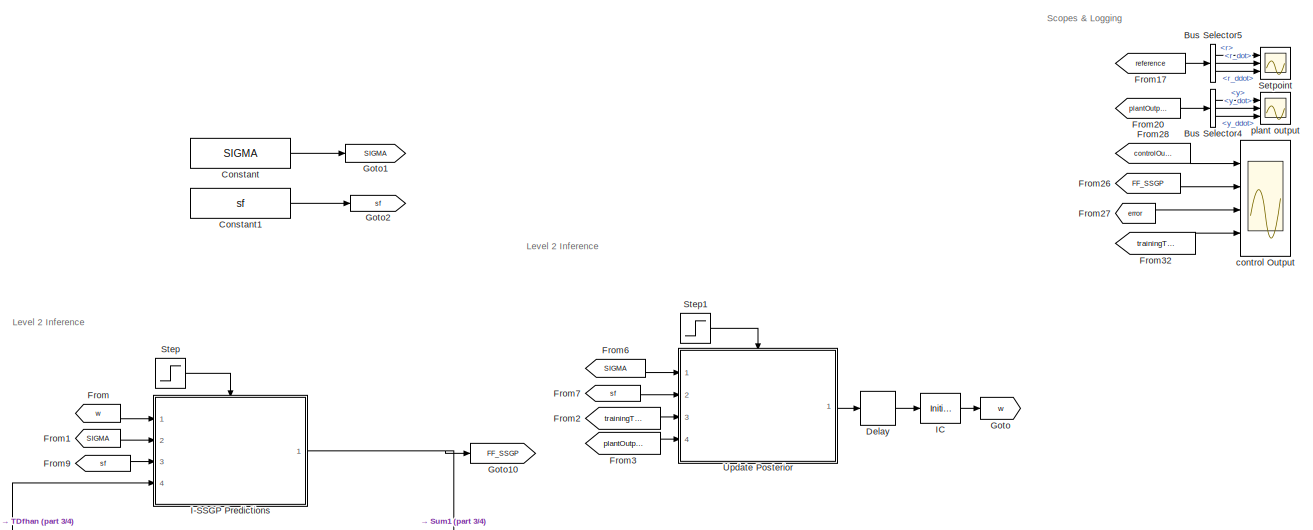
[diagram: root canvas - part 1/4, top center region]
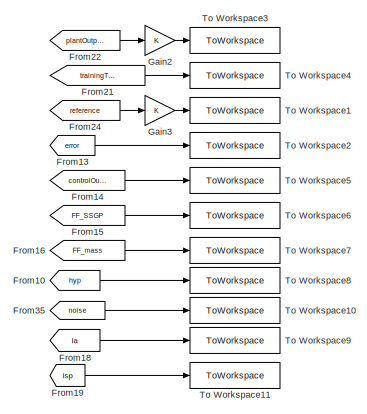
[diagram: root canvas - part 2/4, top right region]
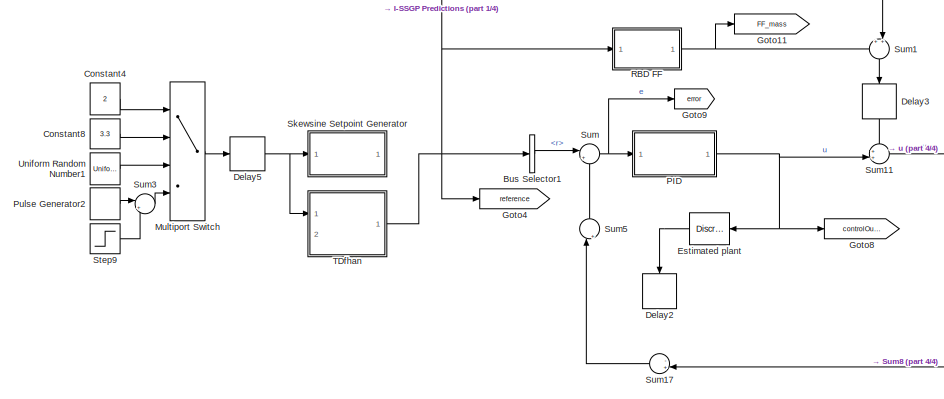
[diagram: root canvas - part 3/4, bottom left region]
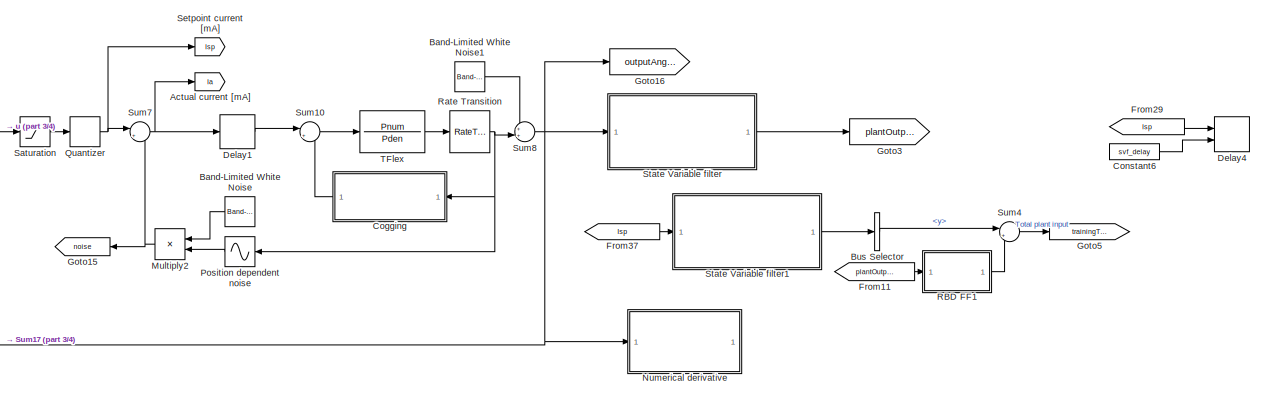
[diagram: root canvas - part 4/4, bottom right region]
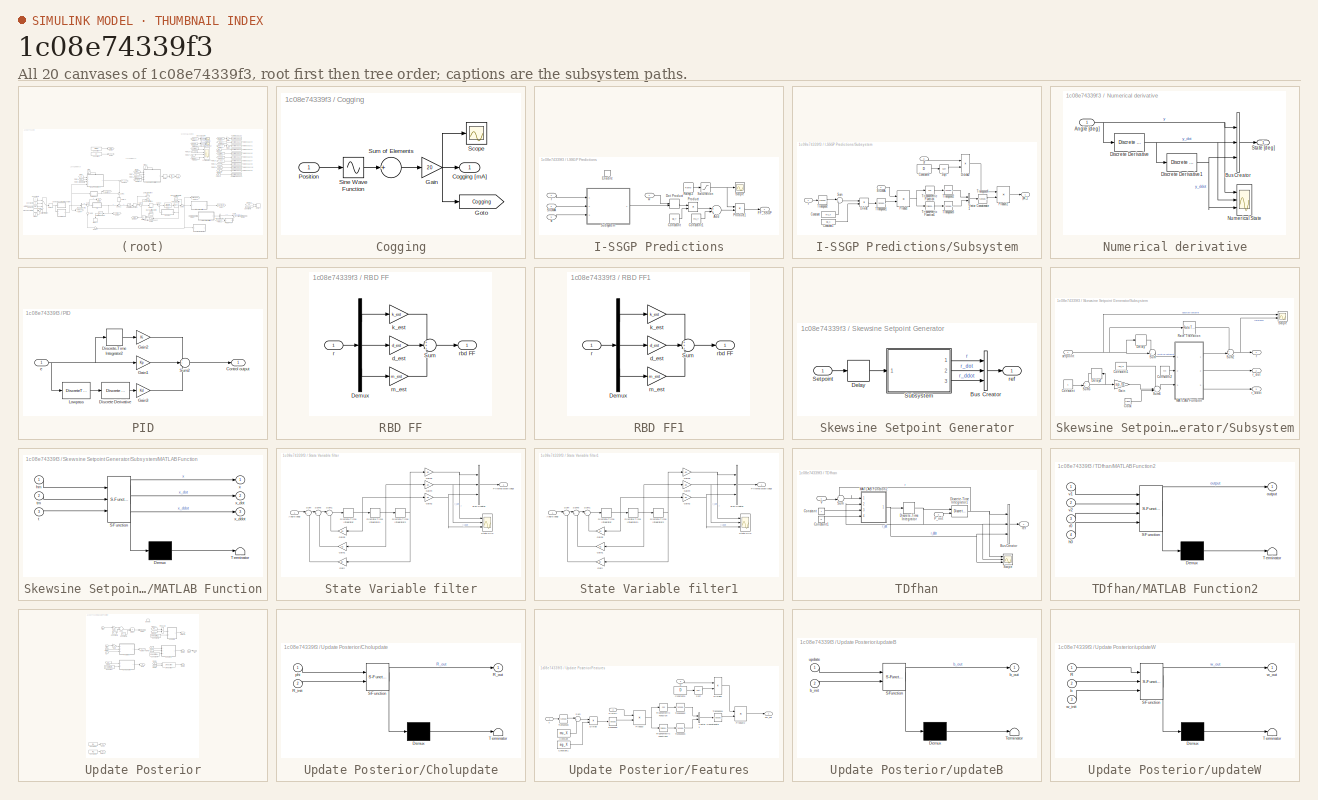
[diagram: thumbnail index - all 20 canvases of the model, root first then tree order]
MODEL slx_1c08e74339f3
KIND model
CONFIG AbsTol = auto
CONFIG EnableMultiTasking = off
CONFIG FixedStep = auto
CONFIG MaxStep = auto
CONFIG MinStep = auto
CONFIG RelTol = 1e-3
CONFIG SampleTimeConstraint = Unconstrained
CONFIG Solver = VariableStepAuto
CONFIG SolverName = VariableStepAuto
CONFIG StartTime = 0.0
CONFIG StopTime = t_end
BLOCK [Goto] Actual current [mA]
  GotoTag = Ia
BLOCK [Reference] Band-Limited White Noise  REF=simulink/Sources/Band-Limited
White Noise
  Ports = [0, 1]
  SourceBlock = simulink/Sources/Band-Limited\nWhite Noise
  SourceProductBaseCode = SL
  SourceProductName = Simulink
  SourceType = Band-Limited White Noise.
BLOCK [Reference] Band-Limited White Noise1  REF=simulink/Sources/Band-Limited
White Noise
  Ports = [0, 1]
  SourceBlock = simulink/Sources/Band-Limited\nWhite Noise
  SourceProductBaseCode = SL
  SourceProductName = Simulink
  SourceType = Band-Limited White Noise.
BLOCK [BusSelector] Bus Selector
  OutputAsBus = off
  OutputSignals = y
  Ports = [1, 1]
BLOCK [BusSelector] Bus Selector1
  OutputAsBus = off
  OutputSignals = r
  Ports = [1, 1]
BLOCK [BusSelector] Bus Selector4
  OutputAsBus = off
  OutputSignals = y,y_dot,y_ddot
  Ports = [1, 3]
BLOCK [BusSelector] Bus Selector5
  OutputAsBus = off
  OutputSignals = r,r_dot,r_ddot
  Ports = [1, 3]
BLOCK [SubSystem] Cogging
  Ports = [1, 1]
  RequestExecContextInheritance = off
BLOCK [Outport] Cogging/Cogging [mA]
  IconDisplay = Port number
BLOCK [Gain] Cogging/Gain
  Gain = 20
  OutDataTypeStr = Inherit: Inherit via internal rule
  ParamDataTypeStr = Inherit: Inherit via internal rule
  SaturateOnIntegerOverflow = off
BLOCK [Goto] Cogging/Goto
  GotoTag = Cogging
BLOCK [Inport] Cogging/Position
  IconDisplay = Port number
BLOCK [Scope] Cogging/Scope
  Floating = off
  NumInputPorts = 1
  Ports = [1]
  ScopeSpecificationString = Simulink.scopes.TimeScopeBlockCfg('CurrentConfiguration', extmgr.ConfigurationSet(extmgr.Configuration('Core','General UI',true),extmgr.Configuration('Core','Source UI',true),extmgr.Configuration('Sources','WiredSimulink',true,'DataLoggingVariableName','ScopeData2'),extmgr.Configuration('Visuals','Time Domain',true,'SerializedDisplays',{struct('MinYLimReal','-28.50673','MaxYLimReal','28.50713','YL...<+1388ch>
BLOCK [Sin] Cogging/Sine Wave Function
  Amplitude = ampCogging'
  Frequency = 2*pi./freqCogging'
  Phase = phaseCogging'*2*pi
  Ports = [1, 1]
  SampleTime = 0
  TimeSource = Use external signal
BLOCK [Sum] Cogging/Sum of Elements
  InputSameDT = off
  Inputs = +
  OutDataTypeStr = Inherit: Inherit via internal rule
  Ports = [1, 1]
  SaturateOnIntegerOverflow = off
BLOCK [Constant] Constant
  Value = SIGMA
BLOCK [Constant] Constant1
  Value = sf
BLOCK [Constant] Constant4
  SampleTime = sp_ts
  Value = 2
BLOCK [Constant] Constant6
  SampleTime = ts
  Value = svf_delay
BLOCK [Constant] Constant8
  SampleTime = sp_ts
  Value = 3.3
BLOCK [Delay] Delay
  DelayLength = 1
  InitialCondition = 0
  InputPortMap = u0
  Ports = [1, 1]
BLOCK [Delay] Delay1
  Commented = through
  DelayLength = 3
  InitialCondition = 0
  InputPortMap = u0
  Ports = [1, 1]
BLOCK [Delay] Delay2
  DelayLength = 3
  InitialCondition = 0
  InputPortMap = u0
  Ports = [1, 1]
BLOCK [Delay] Delay3
  Commented = through
  DelayLength = 3
  InitialCondition = 0
  InputPortMap = u0
  Ports = [1, 1]
BLOCK [Delay] Delay4
  DelayLength = 3
  DelayLengthSource = Input port
  InitialCondition = 0
  InputPortMap = u0,p1
  Ports = [2, 1]
BLOCK [Delay] Delay5
  Commented = through
  DelayLength = sp_ts
  InputPortMap = u0
  Ports = [1, 1]
  SampleTime = sp_ts
BLOCK [DiscreteTransferFcn] Estimated plant
  Denominator = P_estden
  InputPortMap = u0
  Numerator = P_estnum
  Ports = [1, 1]
  SampleTime = ts
BLOCK [From] From
  GotoTag = w
BLOCK [From] From1
  GotoTag = SIGMA
BLOCK [From] From10
  GotoTag = hyp
BLOCK [From] From11
  GotoTag = plantOutput
BLOCK [From] From13
  GotoTag = error
BLOCK [From] From14
  GotoTag = controlOutput
BLOCK [From] From15
  GotoTag = FF_SSGP
BLOCK [From] From16
  GotoTag = FF_mass
BLOCK [From] From17
  GotoTag = reference
BLOCK [From] From18
  GotoTag = Ia
BLOCK [From] From19
  GotoTag = Isp
BLOCK [From] From2
  GotoTag = trainingTarget
BLOCK [From] From20
  GotoTag = plantOutput
BLOCK [From] From21
  GotoTag = trainingTarget
BLOCK [From] From22
  GotoTag = plantOutput
BLOCK [From] From24
  GotoTag = reference
BLOCK [From] From26
  GotoTag = FF_SSGP
BLOCK [From] From27
  GotoTag = error
BLOCK [From] From28
  GotoTag = controlOutput
BLOCK [From] From29
  GotoTag = Isp
BLOCK [From] From3
  GotoTag = plantOutput
BLOCK [From] From32
  GotoTag = trainingTarget
BLOCK [From] From35
  GotoTag = noise
BLOCK [From] From37
  GotoTag = Isp
BLOCK [From] From6
  GotoTag = SIGMA
BLOCK [From] From7
  GotoTag = sf
BLOCK [From] From9
  GotoTag = sf
BLOCK [Gain] Gain2
  OutDataTypeStr = Inherit: Inherit via internal rule
  ParamDataTypeStr = Inherit: Inherit via internal rule
  SaturateOnIntegerOverflow = off
BLOCK [Gain] Gain3
  OutDataTypeStr = Inherit: Inherit via internal rule
  ParamDataTypeStr = Inherit: Inherit via internal rule
  SaturateOnIntegerOverflow = off
BLOCK [Goto] Goto
  GotoTag = w
BLOCK [Goto] Goto1
  GotoTag = SIGMA
BLOCK [Goto] Goto10
  GotoTag = FF_SSGP
BLOCK [Goto] Goto11
  GotoTag = FF_mass
BLOCK [Goto] Goto15
  GotoTag = noise
BLOCK [Goto] Goto16
  GotoTag = outputAngle
BLOCK [Goto] Goto2
  GotoTag = sf
BLOCK [Goto] Goto3
  GotoTag = plantOutput
BLOCK [Goto] Goto4
  GotoTag = reference
BLOCK [Goto] Goto5
  GotoTag = trainingTarget
BLOCK [Goto] Goto8
  GotoTag = controlOutput
BLOCK [Goto] Goto9
  GotoTag = error
BLOCK [SubSystem] I-SSGP Predictions
  Ports = [4, 1, 1]
  RequestExecContextInheritance = off
BLOCK [Sum] I-SSGP Predictions/Add
  InputSameDT = off
  OutDataTypeStr = Inherit: Inherit via internal rule
  Ports = [2, 1]
  SaturateOnIntegerOverflow = off
BLOCK [Constant] I-SSGP Predictions/Constant
  SampleTime = ts
  Value = sig_Y
  VectorParams1D = off
BLOCK [Constant] I-SSGP Predictions/Constant1
  SampleTime = ts
  Value = mu_Y
  VectorParams1D = off
BLOCK [DotProduct] I-SSGP Predictions/Dot Product
  InputSameDT = off
  OutDataTypeStr = Inherit: Inherit via internal rule
BLOCK [EnablePort] I-SSGP Predictions/Enable
  Ports = []
BLOCK [Outport] I-SSGP Predictions/FF_SSGP
  IconDisplay = Port number
  SampleTime = ts
BLOCK [Product] I-SSGP Predictions/Product
  InputSameDT = off
  OutDataTypeStr = Inherit: Inherit via internal rule
  Ports = [2, 1]
  RndMeth = Floor
  SaturateOnIntegerOverflow = off
BLOCK [Product] I-SSGP Predictions/Product1
  InputSameDT = off
  OutDataTypeStr = Inherit: Inherit via internal rule
  Ports = [2, 1]
  RndMeth = Floor
  SaturateOnIntegerOverflow = off
BLOCK [Reference] I-SSGP Predictions/Ramp2  REF=simulink/Sources/Ramp
  Ports = [0, 1]
  SourceBlock = simulink/Sources/Ramp
  SourceProductBaseCode = SL
  SourceProductName = Simulink
  SourceType = Ramp
BLOCK [Inport] I-SSGP Predictions/SIGMA
  IconDisplay = Port number
  Port = 2
BLOCK [Saturate] I-SSGP Predictions/Saturation
  InputPortMap = u0
  LowerLimit = 0
  Ports = [1, 1]
  UpperLimit = 1
BLOCK [Scope] I-SSGP Predictions/Scope
  Floating = off
  NumInputPorts = 1
  Ports = [1]
  ScopeSpecificationString = Simulink.scopes.TimeScopeBlockCfg('CurrentConfiguration', extmgr.ConfigurationSet(extmgr.Configuration('Core','General UI',true),extmgr.Configuration('Core','Source UI',true),extmgr.Configuration('Sources','WiredSimulink',true,'DataLoggingVariableName','ScopeData2'),extmgr.Configuration('Visuals','Time Domain',true,'SerializedDisplays',{struct('MinYLimReal','-0.125','MaxYLimReal','1.125','YLabelRe...<+1433ch>
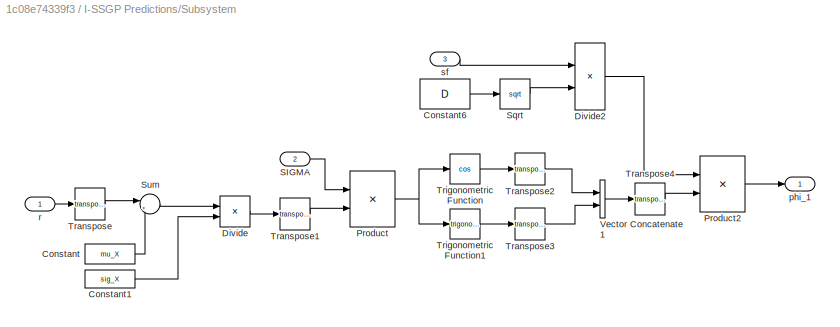
BLOCK [SubSystem] I-SSGP Predictions/Subsystem
  Ports = [3, 1]
  RequestExecContextInheritance = off
BLOCK [Constant] I-SSGP Predictions/Subsystem/Constant
  SampleTime = -1
  Value = mu_X
  VectorParams1D = off
BLOCK [Constant] I-SSGP Predictions/Subsystem/Constant1
  SampleTime = -1
  Value = sig_X
  VectorParams1D = off
BLOCK [Constant] I-SSGP Predictions/Subsystem/Constant6
  SampleTime = -1
  Value = D
BLOCK [Product] I-SSGP Predictions/Subsystem/Divide
  InputSameDT = off
  Inputs = */
  OutDataTypeStr = Inherit: Inherit via internal rule
  Ports = [2, 1]
  RndMeth = Floor
  SaturateOnIntegerOverflow = off
BLOCK [Product] I-SSGP Predictions/Subsystem/Divide2
  InputSameDT = off
  Inputs = */
  OutDataTypeStr = Inherit: Inherit via internal rule
  Ports = [2, 1]
  RndMeth = Floor
  SaturateOnIntegerOverflow = off
BLOCK [Product] I-SSGP Predictions/Subsystem/Product
  InputSameDT = off
  Multiplication = Matrix(*)
  OutDataTypeStr = Inherit: Inherit via internal rule
  Ports = [2, 1]
  RndMeth = Floor
  SaturateOnIntegerOverflow = off
BLOCK [Product] I-SSGP Predictions/Subsystem/Product2
  InputSameDT = off
  OutDataTypeStr = Inherit: Inherit via internal rule
  Ports = [2, 1]
  RndMeth = Floor
  SaturateOnIntegerOverflow = off
BLOCK [Inport] I-SSGP Predictions/Subsystem/SIGMA
  IconDisplay = Port number
  Port = 2
BLOCK [Sqrt] I-SSGP Predictions/Subsystem/Sqrt
BLOCK [Sum] I-SSGP Predictions/Subsystem/Sum
  IconShape = round
  InputSameDT = off
  Inputs = |+-
  OutDataTypeStr = Inherit: Inherit via internal rule
  Ports = [2, 1]
  SaturateOnIntegerOverflow = off
BLOCK [Math] I-SSGP Predictions/Subsystem/Transpose
  Operator = transpose
  Ports = [1, 1]
BLOCK [Math] I-SSGP Predictions/Subsystem/Transpose1
  Operator = transpose
  Ports = [1, 1]
BLOCK [Math] I-SSGP Predictions/Subsystem/Transpose2
  Operator = transpose
  Ports = [1, 1]
BLOCK [Math] I-SSGP Predictions/Subsystem/Transpose3
  Operator = transpose
  Ports = [1, 1]
BLOCK [Math] I-SSGP Predictions/Subsystem/Transpose4
  Operator = transpose
  Ports = [1, 1]
BLOCK [Trigonometry] I-SSGP Predictions/Subsystem/Trigonometric Function
  Operator = cos
  Ports = [1, 1]
BLOCK [Trigonometry] I-SSGP Predictions/Subsystem/Trigonometric Function1
  Ports = [1, 1]
BLOCK [Concatenate] I-SSGP Predictions/Subsystem/Vector Concatenate1
  Ports = [2, 1]
BLOCK [Outport] I-SSGP Predictions/Subsystem/phi_1
  IconDisplay = Port number
BLOCK [Inport] I-SSGP Predictions/Subsystem/r
  IconDisplay = Port number
BLOCK [Inport] I-SSGP Predictions/Subsystem/sf
  IconDisplay = Port number
  Port = 3
BLOCK [Inport] I-SSGP Predictions/r
  IconDisplay = Port number
  Port = 4
BLOCK [Inport] I-SSGP Predictions/sf
  IconDisplay = Port number
  Port = 3
BLOCK [Inport] I-SSGP Predictions/w
  IconDisplay = Port number
BLOCK [InitialCondition] IC
  Value = ones(2*D,1)*0.001
BLOCK [Product] Multiply2
  InputSameDT = off
  OutDataTypeStr = Inherit: Inherit via internal rule
  Ports = [2, 1]
  RndMeth = Floor
  SaturateOnIntegerOverflow = off
BLOCK [MultiPortSwitch] Multiport Switch
  InputSameDT = off
  Ports = [4, 1]
  SaturateOnIntegerOverflow = off
BLOCK [SubSystem] Numerical derivative
  Ports = [1, 1]
  RequestExecContextInheritance = off
BLOCK [Inport] Numerical derivative/Angle [deg]
  IconDisplay = Port number
BLOCK [BusCreator] Numerical derivative/Bus Creator
  DisplayOption = bar
  InheritFromInputs = on
  Inputs = 3
  Ports = [3, 1]
BLOCK [Reference] Numerical derivative/Discrete Derivative  REF=simulink/Discrete/Discrete Derivative
  Ports = [1, 1]
  SourceBlock = simulink/Discrete/Discrete Derivative
  SourceProductBaseCode = SL
  SourceProductName = Simulink
  SourceType = Discrete Derivative
BLOCK [Reference] Numerical derivative/Discrete Derivative1  REF=simulink/Discrete/Discrete Derivative
  Ports = [1, 1]
  SourceBlock = simulink/Discrete/Discrete Derivative
  SourceProductBaseCode = SL
  SourceProductName = Simulink
  SourceType = Discrete Derivative
BLOCK [Scope] Numerical derivative/Numerical State
  Floating = off
  NumInputPorts = 3
  Ports = [3]
  ScopeSpecificationString = Simulink.scopes.TimeScopeBlockCfg('CurrentConfiguration', extmgr.ConfigurationSet(extmgr.Configuration('Core','General UI',true),extmgr.Configuration('Core','Source UI',true),extmgr.Configuration('Sources','WiredSimulink',true,'DataLoggingVariableName','ScopeData2','DataLoggingSaveFormat','StructureWithTime'),extmgr.Configuration('Visuals','Time Domain',true,'SerializedDisplays',{struct('MinYLimRe...<+2770ch>
BLOCK [Outport] Numerical derivative/State [deg]
  IconDisplay = Port number
BLOCK [SubSystem] PID
  Ports = [1, 1]
  RequestExecContextInheritance = off
BLOCK [Outport] PID/Control output
  IconDisplay = Port number
BLOCK [Reference] PID/Discrete Derivative  REF=simulink/Discrete/Discrete Derivative
  Ports = [1, 1]
  SourceBlock = simulink/Discrete/Discrete Derivative
  SourceProductBaseCode = SL
  SourceProductName = Simulink
  SourceType = Discrete Derivative
BLOCK [DiscreteIntegrator] PID/Discrete-Time Integrator2
  ICPrevOutput = DiscIntNeverNeededParam
  ICPrevScaledInput = DiscIntNeverNeededParam
  InitialConditionSetting = Auto
  Ports = [1, 1]
  SampleTime = -1
BLOCK [Gain] PID/Gain1
  Gain = Kp
  OutDataTypeStr = Inherit: Inherit via internal rule
  ParamDataTypeStr = Inherit: Inherit via internal rule
  SaturateOnIntegerOverflow = off
BLOCK [Gain] PID/Gain2
  Gain = Ki
  OutDataTypeStr = Inherit: Inherit via internal rule
  ParamDataTypeStr = Inherit: Inherit via internal rule
  SaturateOnIntegerOverflow = off
BLOCK [Gain] PID/Gain3
  Gain = Kd
  OutDataTypeStr = Inherit: Inherit via internal rule
  ParamDataTypeStr = Inherit: Inherit via internal rule
  SaturateOnIntegerOverflow = off
BLOCK [DiscreteTransferFcn] PID/Lowpass
  Denominator = LPden
  InputPortMap = u0
  Numerator = LPnum
  Ports = [1, 1]
  SampleTime = ts
BLOCK [Sum] PID/Sum2
  IconShape = round
  InputSameDT = off
  Inputs = 3
  OutDataTypeStr = Inherit: Inherit via internal rule
  Ports = [3, 1]
  SaturateOnIntegerOverflow = off
BLOCK [Inport] PID/e
  IconDisplay = Port number
BLOCK [Sin] Position dependent noise
  Amplitude = 2.5
  Bias = 7.4979
  Frequency = 2*pi/13
  Ports = [1, 1]
  SampleTime = 0
  TimeSource = Use external signal
BLOCK [DiscretePulseGenerator] Pulse Generator2
  Amplitude = 2*24
  Ports = [0, 1]
  SampleTime = sp_ts
BLOCK [Quantizer] Quantizer
  QuantizationInterval = 1
BLOCK [SubSystem] RBD FF
  Ports = [1, 1]
  RequestExecContextInheritance = off
BLOCK [Demux] RBD FF/Demux
  DisplayOption = bar
  Outputs = 3
  Ports = [1, 3]
BLOCK [Sum] RBD FF/Sum
  IconShape = round
  InputSameDT = off
  Inputs = +++
  OutDataTypeStr = Inherit: Inherit via internal rule
  Ports = [3, 1]
  SaturateOnIntegerOverflow = off
BLOCK [Gain] RBD FF/d_est
  Gain = d_est
  OutDataTypeStr = Inherit: Inherit via internal rule
  ParamDataTypeStr = Inherit: Inherit via internal rule
  SaturateOnIntegerOverflow = off
BLOCK [Gain] RBD FF/k_est
  Gain = k_est
  OutDataTypeStr = Inherit: Inherit via internal rule
  ParamDataTypeStr = Inherit: Inherit via internal rule
  SaturateOnIntegerOverflow = off
BLOCK [Gain] RBD FF/m_est
  Gain = m_est
  OutDataTypeStr = Inherit: Inherit via internal rule
  ParamDataTypeStr = Inherit: Inherit via internal rule
  SaturateOnIntegerOverflow = off
BLOCK [Inport] RBD FF/r
  IconDisplay = Port number
BLOCK [Outport] RBD FF/rbd FF
  IconDisplay = Port number
BLOCK [SubSystem] RBD FF1
  Ports = [1, 1]
  RequestExecContextInheritance = off
BLOCK [Demux] RBD FF1/Demux
  DisplayOption = bar
  Outputs = 3
  Ports = [1, 3]
BLOCK [Sum] RBD FF1/Sum
  IconShape = round
  InputSameDT = off
  Inputs = +++
  OutDataTypeStr = Inherit: Inherit via internal rule
  Ports = [3, 1]
  SaturateOnIntegerOverflow = off
BLOCK [Gain] RBD FF1/d_est
  Gain = d_est
  OutDataTypeStr = Inherit: Inherit via internal rule
  ParamDataTypeStr = Inherit: Inherit via internal rule
  SaturateOnIntegerOverflow = off
BLOCK [Gain] RBD FF1/k_est
  Gain = k_est
  OutDataTypeStr = Inherit: Inherit via internal rule
  ParamDataTypeStr = Inherit: Inherit via internal rule
  SaturateOnIntegerOverflow = off
BLOCK [Gain] RBD FF1/m_est
  Gain = m_est
  OutDataTypeStr = Inherit: Inherit via internal rule
  ParamDataTypeStr = Inherit: Inherit via internal rule
  SaturateOnIntegerOverflow = off
BLOCK [Inport] RBD FF1/r
  IconDisplay = Port number
BLOCK [Outport] RBD FF1/rbd FF
  IconDisplay = Port number
BLOCK [RateTransition] Rate Transition
  OutPortSampleTime = ts
BLOCK [Saturate] Saturation
  InputPortMap = u0
  LowerLimit = -I_limit
  Ports = [1, 1]
  UpperLimit = I_limit
BLOCK [Scope] Setpoint
  Floating = off
  NumInputPorts = 3
  Ports = [3]
  ScopeSpecificationString = Simulink.scopes.TimeScopeBlockCfg('CurrentConfiguration', extmgr.ConfigurationSet(extmgr.Configuration('Core','General UI',true),extmgr.Configuration('Core','Source UI',true),extmgr.Configuration('Sources','WiredSimulink',true,'DataLoggingVariableName','ScopeData3','DataLoggingSaveFormat','StructureWithTime'),extmgr.Configuration('Visuals','Time Domain',true,'SerializedDisplays',{struct('MinYLimRe...<+2775ch>
BLOCK [Goto] Setpoint current [mA]
  GotoTag = Isp
BLOCK [SubSystem] Skewsine Setpoint Generator
  Ports = [1, 1]
  RequestExecContextInheritance = off
BLOCK [BusCreator] Skewsine Setpoint Generator/Bus Creator
  DisplayOption = bar
  InheritFromInputs = on
  Inputs = 3
  Ports = [3, 1]
BLOCK [Delay] Skewsine Setpoint Generator/Delay
  Commented = through
  DelayLength = 1
  InitialCondition = 0
  InputPortMap = u0
  Ports = [1, 1]
BLOCK [Inport] Skewsine Setpoint Generator/Setpoint
  IconDisplay = Port number
BLOCK [SubSystem] Skewsine Setpoint Generator/Subsystem
  Ports = [1, 3]
  RequestExecContextInheritance = off
BLOCK [Clock] Skewsine Setpoint Generator/Subsystem/Clock
  Decimation = 100
BLOCK [Constant] Skewsine Setpoint Generator/Subsystem/Constant
  SampleTime = sp_ts
BLOCK [Constant] Skewsine Setpoint Generator/Subsystem/Constant1
  SampleTime = sp_ts
  Value = -sp_ts
BLOCK [Constant] Skewsine Setpoint Generator/Subsystem/Constant2
  SampleTime = sp_ts
  Value = tm
BLOCK [Delay] Skewsine Setpoint Generator/Subsystem/Delay
  DelayLength = 1
  InitialCondition = 0
  InputPortMap = u0
  Ports = [1, 1]
  SampleTime = sp_ts
BLOCK [Delay] Skewsine Setpoint Generator/Subsystem/Delay4
  DelayLength = 1
  InitialCondition = 0
  InputPortMap = u0
  Ports = [1, 1]
  SampleTime = sp_ts
BLOCK [Gain] Skewsine Setpoint Generator/Subsystem/Gain
  Gain = sp_ts
  OutDataTypeStr = Inherit: Inherit via internal rule
  ParamDataTypeStr = Inherit: Inherit via internal rule
  SaturateOnIntegerOverflow = off
BLOCK [SubSystem] Skewsine Setpoint Generator/Subsystem/MATLAB Function
  ErrorFcn = Stateflow.Translate.translate
  PermitHierarchicalResolution = ExplicitOnly
  Ports = [3, 3]
  RequestExecContextInheritance = off
  SFBlockType = MATLAB Function
  TreatAsAtomicUnit = on
BLOCK [Demux] Skewsine Setpoint Generator/Subsystem/MATLAB Function/ Demux 
  Outputs = 1
  Ports = [1, 1]
BLOCK [S-Function] Skewsine Setpoint Generator/Subsystem/MATLAB Function/ SFunction 
  EnableBusSupport = on
  FunctionName = sf_sfun
  PortCounts = [3 4]
  Ports = [3, 4]
  SFcnIsStateOwnerBlock = off
  SFunctionDeploymentMode = off
  Tag = Stateflow S-Function TFlex_ISSGP_noHyp 2
BLOCK [Terminator] Skewsine Setpoint Generator/Subsystem/MATLAB Function/ Terminator 
BLOCK [Inport] Skewsine Setpoint Generator/Subsystem/MATLAB Function/hm
  IconDisplay = Port number
BLOCK [Inport] Skewsine Setpoint Generator/Subsystem/MATLAB Function/t
  IconDisplay = Port number
  Port = 3
BLOCK [Inport] Skewsine Setpoint Generator/Subsystem/MATLAB Function/tm
  IconDisplay = Port number
  Port = 2
BLOCK [Outport] Skewsine Setpoint Generator/Subsystem/MATLAB Function/x
  IconDisplay = Port number
BLOCK [Outport] Skewsine Setpoint Generator/Subsystem/MATLAB Function/x_ddot
  IconDisplay = Port number
  Port = 3
BLOCK [Outport] Skewsine Setpoint Generator/Subsystem/MATLAB Function/x_dot
  IconDisplay = Port number
  Port = 2
BLOCK [RateTransition] Skewsine Setpoint Generator/Subsystem/Rate Transition
  OutPortSampleTime = ts
BLOCK [Scope] Skewsine Setpoint Generator/Subsystem/Scope
  Floating = off
  NumInputPorts = 2
  Ports = [2]
  ScopeSpecificationString = Simulink.scopes.TimeScopeBlockCfg('CurrentConfiguration', extmgr.ConfigurationSet(extmgr.Configuration('Core','General UI',true),extmgr.Configuration('Core','Source UI',true),extmgr.Configuration('Sources','WiredSimulink',true,'DataLoggingVariableName','ScopeData2'),extmgr.Configuration('Visuals','Time Domain',true,'SerializedDisplays',{struct('MinYLimReal','-26.98733','MaxYLimReal','28.29894','YL...<+1450ch>
BLOCK [Sum] Skewsine Setpoint Generator/Subsystem/Sum
  IconShape = round
  InputSameDT = off
  Inputs = -+|
  OutDataTypeStr = Inherit: Inherit via internal rule
  Ports = [2, 1]
  SaturateOnIntegerOverflow = off
BLOCK [Sum] Skewsine Setpoint Generator/Subsystem/Sum2
  IconShape = round
  InputSameDT = off
  Inputs = ++|
  OutDataTypeStr = Inherit: Inherit via internal rule
  Ports = [2, 1]
  SaturateOnIntegerOverflow = off
BLOCK [Sum] Skewsine Setpoint Generator/Subsystem/Sum5
  IconShape = round
  InputSameDT = off
  Inputs = ++|
  OutDataTypeStr = Inherit: Inherit via internal rule
  Ports = [2, 1]
  SaturateOnIntegerOverflow = off
BLOCK [Sum] Skewsine Setpoint Generator/Subsystem/Sum6
  IconShape = round
  InputSameDT = off
  Inputs = --+|
  OutDataTypeStr = Inherit: Inherit via internal rule
  Ports = [3, 1]
  SaturateOnIntegerOverflow = off
BLOCK [Outport] Skewsine Setpoint Generator/Subsystem/r
  IconDisplay = Port number
BLOCK [Outport] Skewsine Setpoint Generator/Subsystem/r_ddot
  IconDisplay = Port number
  Port = 3
BLOCK [Outport] Skewsine Setpoint Generator/Subsystem/r_dot
  IconDisplay = Port number
  Port = 2
BLOCK [Inport] Skewsine Setpoint Generator/Subsystem/setpoint
  IconDisplay = Port number
BLOCK [Outport] Skewsine Setpoint Generator/ref
  IconDisplay = Port number
BLOCK [SubSystem] State Variable filter
  Ports = [1, 1]
  RequestExecContextInheritance = off
BLOCK [Inport] State Variable filter/Angle [deg]
  IconDisplay = Port number
BLOCK [BusCreator] State Variable filter/Bus Creator
  DisplayOption = bar
  InheritFromInputs = on
  Inputs = 3
  Ports = [3, 1]
BLOCK [DiscreteIntegrator] State Variable filter/Discrete-Time Integrator
  ICPrevOutput = DiscIntNeverNeededParam
  ICPrevScaledInput = DiscIntNeverNeededParam
  InitialConditionSetting = Auto
  Ports = [1, 1]
  SampleTime = -1
BLOCK [DiscreteIntegrator] State Variable filter/Discrete-Time Integrator1
  ICPrevOutput = DiscIntNeverNeededParam
  ICPrevScaledInput = DiscIntNeverNeededParam
  InitialConditionSetting = Auto
  Ports = [1, 1]
  SampleTime = -1
BLOCK [DiscreteIntegrator] State Variable filter/Discrete-Time Integrator2
  ICPrevOutput = DiscIntNeverNeededParam
  ICPrevScaledInput = DiscIntNeverNeededParam
  InitialConditionSetting = Auto
  Ports = [1, 1]
  SampleTime = -1
BLOCK [Outport] State Variable filter/Filtered state [deg]
  IconDisplay = Port number
  SampleTime = ts
BLOCK [Gain] State Variable filter/Gain
  Gain = a0
  OutDataTypeStr = Inherit: Inherit via internal rule
  ParamDataTypeStr = Inherit: Inherit via internal rule
  SaturateOnIntegerOverflow = off
BLOCK [Gain] State Variable filter/Gain1
  Gain = a1
  OutDataTypeStr = Inherit: Inherit via internal rule
  ParamDataTypeStr = Inherit: Inherit via internal rule
  SaturateOnIntegerOverflow = off
BLOCK [Gain] State Variable filter/Gain2
  Gain = a0
  OutDataTypeStr = Inherit: Inherit via internal rule
  ParamDataTypeStr = Inherit: Inherit via internal rule
  SaturateOnIntegerOverflow = off
BLOCK [Gain] State Variable filter/Gain3
  Gain = a0
  OutDataTypeStr = Inherit: Inherit via internal rule
  ParamDataTypeStr = Inherit: Inherit via internal rule
  SaturateOnIntegerOverflow = off
BLOCK [Gain] State Variable filter/Gain4
  Gain = a0
  OutDataTypeStr = Inherit: Inherit via internal rule
  ParamDataTypeStr = Inherit: Inherit via internal rule
  SaturateOnIntegerOverflow = off
BLOCK [Gain] State Variable filter/Gain5
  Gain = a2
  OutDataTypeStr = Inherit: Inherit via internal rule
  ParamDataTypeStr = Inherit: Inherit via internal rule
  SaturateOnIntegerOverflow = off
BLOCK [Scope] State Variable filter/State SVF
  Floating = off
  NumInputPorts = 3
  Ports = [3]
  ScopeSpecificationString = Simulink.scopes.TimeScopeBlockCfg('CurrentConfiguration', extmgr.ConfigurationSet(extmgr.Configuration('Core','General UI',true),extmgr.Configuration('Core','Source UI',true),extmgr.Configuration('Sources','WiredSimulink',true,'DataLoggingVariableName','ScopeData2','DataLoggingSaveFormat','StructureWithTime'),extmgr.Configuration('Visuals','Time Domain',true,'SerializedDisplays',{struct('MinYLimRe...<+2766ch>
BLOCK [Sum] State Variable filter/Sum
  IconShape = round
  InputSameDT = off
  Inputs = |+-
  OutDataTypeStr = Inherit: Inherit via internal rule
  Ports = [2, 1]
  SaturateOnIntegerOverflow = off
BLOCK [Sum] State Variable filter/Sum1
  IconShape = round
  InputSameDT = off
  Inputs = |+-
  OutDataTypeStr = Inherit: Inherit via internal rule
  Ports = [2, 1]
  SaturateOnIntegerOverflow = off
BLOCK [Sum] State Variable filter/Sum5
  IconShape = round
  InputSameDT = off
  Inputs = |+-
  OutDataTypeStr = Inherit: Inherit via internal rule
  Ports = [2, 1]
  SaturateOnIntegerOverflow = off
BLOCK [SubSystem] State Variable filter1
  Ports = [1, 1]
  RequestExecContextInheritance = off
BLOCK [Inport] State Variable filter1/Angle [deg]
  IconDisplay = Port number
BLOCK [BusCreator] State Variable filter1/Bus Creator
  DisplayOption = bar
  InheritFromInputs = on
  Inputs = 3
  Ports = [3, 1]
BLOCK [DiscreteIntegrator] State Variable filter1/Discrete-Time Integrator
  ICPrevOutput = DiscIntNeverNeededParam
  ICPrevScaledInput = DiscIntNeverNeededParam
  InitialConditionSetting = Auto
  Ports = [1, 1]
  SampleTime = -1
BLOCK [DiscreteIntegrator] State Variable filter1/Discrete-Time Integrator1
  ICPrevOutput = DiscIntNeverNeededParam
  ICPrevScaledInput = DiscIntNeverNeededParam
  InitialConditionSetting = Auto
  Ports = [1, 1]
  SampleTime = -1
BLOCK [DiscreteIntegrator] State Variable filter1/Discrete-Time Integrator2
  ICPrevOutput = DiscIntNeverNeededParam
  ICPrevScaledInput = DiscIntNeverNeededParam
  InitialConditionSetting = Auto
  Ports = [1, 1]
  SampleTime = -1
BLOCK [Outport] State Variable filter1/Filtered state [deg]
  IconDisplay = Port number
  SampleTime = ts
BLOCK [Gain] State Variable filter1/Gain
  Gain = a0
  OutDataTypeStr = Inherit: Inherit via internal rule
  ParamDataTypeStr = Inherit: Inherit via internal rule
  SaturateOnIntegerOverflow = off
BLOCK [Gain] State Variable filter1/Gain1
  Gain = a1
  OutDataTypeStr = Inherit: Inherit via internal rule
  ParamDataTypeStr = Inherit: Inherit via internal rule
  SaturateOnIntegerOverflow = off
BLOCK [Gain] State Variable filter1/Gain2
  Gain = a0
  OutDataTypeStr = Inherit: Inherit via internal rule
  ParamDataTypeStr = Inherit: Inherit via internal rule
  SaturateOnIntegerOverflow = off
BLOCK [Gain] State Variable filter1/Gain3
  Gain = a0
  OutDataTypeStr = Inherit: Inherit via internal rule
  ParamDataTypeStr = Inherit: Inherit via internal rule
  SaturateOnIntegerOverflow = off
BLOCK [Gain] State Variable filter1/Gain4
  Gain = a0
  OutDataTypeStr = Inherit: Inherit via internal rule
  ParamDataTypeStr = Inherit: Inherit via internal rule
  SaturateOnIntegerOverflow = off
BLOCK [Gain] State Variable filter1/Gain5
  Gain = a2
  OutDataTypeStr = Inherit: Inherit via internal rule
  ParamDataTypeStr = Inherit: Inherit via internal rule
  SaturateOnIntegerOverflow = off
BLOCK [Scope] State Variable filter1/State SVF
  Floating = off
  NumInputPorts = 3
  Ports = [3]
  ScopeSpecificationString = Simulink.scopes.TimeScopeBlockCfg('CurrentConfiguration', extmgr.ConfigurationSet(extmgr.Configuration('Core','General UI',true),extmgr.Configuration('Core','Source UI',true),extmgr.Configuration('Sources','WiredSimulink',true,'DataLoggingVariableName','ScopeData2','DataLoggingSaveFormat','StructureWithTime'),extmgr.Configuration('Visuals','Time Domain',true,'SerializedDisplays',{struct('MinYLimRe...<+2766ch>
BLOCK [Sum] State Variable filter1/Sum
  IconShape = round
  InputSameDT = off
  Inputs = |+-
  OutDataTypeStr = Inherit: Inherit via internal rule
  Ports = [2, 1]
  SaturateOnIntegerOverflow = off
BLOCK [Sum] State Variable filter1/Sum1
  IconShape = round
  InputSameDT = off
  Inputs = |+-
  OutDataTypeStr = Inherit: Inherit via internal rule
  Ports = [2, 1]
  SaturateOnIntegerOverflow = off
BLOCK [Sum] State Variable filter1/Sum5
  IconShape = round
  InputSameDT = off
  Inputs = |+-
  OutDataTypeStr = Inherit: Inherit via internal rule
  Ports = [2, 1]
  SaturateOnIntegerOverflow = off
BLOCK [Step] Step
  SampleTime = ts
  Time = t_predict
BLOCK [Step] Step1
  SampleTime = ts
  Time = 0.01
BLOCK [Step] Step9
  After = -24
  SampleTime = sp_ts
  Time = 0
BLOCK [Sum] Sum
  IconShape = round
  InputSameDT = off
  Inputs = |+-
  OutDataTypeStr = Inherit: Inherit via internal rule
  Ports = [2, 1]
  SaturateOnIntegerOverflow = off
BLOCK [Sum] Sum1
  IconShape = round
  InputSameDT = off
  Inputs = ++|
  OutDataTypeStr = Inherit: Inherit via internal rule
  Ports = [2, 1]
  SaturateOnIntegerOverflow = off
BLOCK [Sum] Sum10
  IconShape = round
  InputSameDT = off
  Inputs = |+-
  OutDataTypeStr = Inherit: Inherit via internal rule
  Ports = [2, 1]
  SaturateOnIntegerOverflow = off
BLOCK [Sum] Sum11
  IconShape = round
  InputSameDT = off
  Inputs = ++|
  OutDataTypeStr = Inherit: Inherit via internal rule
  Ports = [2, 1]
  SaturateOnIntegerOverflow = off
BLOCK [Sum] Sum17
  IconShape = round
  InputSameDT = off
  Inputs = -+|
  OutDataTypeStr = Inherit: Inherit via internal rule
  Ports = [2, 1]
  SaturateOnIntegerOverflow = off
BLOCK [Sum] Sum3
  IconShape = round
  InputSameDT = off
  Inputs = |++
  OutDataTypeStr = Inherit: Inherit via internal rule
  Ports = [2, 1]
  SaturateOnIntegerOverflow = off
BLOCK [Sum] Sum4
  IconShape = round
  InputSameDT = off
  Inputs = |+-
  OutDataTypeStr = Inherit: Inherit via internal rule
  Ports = [2, 1]
  SaturateOnIntegerOverflow = off
BLOCK [Sum] Sum5
  IconShape = round
  InputSameDT = off
  Inputs = |++
  OutDataTypeStr = Inherit: Inherit via internal rule
  Ports = [2, 1]
  SaturateOnIntegerOverflow = off
BLOCK [Sum] Sum7
  IconShape = round
  InputSameDT = off
  Inputs = |+-
  OutDataTypeStr = Inherit: Inherit via internal rule
  Ports = [2, 1]
  SaturateOnIntegerOverflow = off
BLOCK [Sum] Sum8
  IconShape = round
  InputSameDT = off
  Inputs = ++|
  OutDataTypeStr = Inherit: Inherit via internal rule
  Ports = [2, 1]
  SaturateOnIntegerOverflow = off
BLOCK [SubSystem] TDfhan
  Ports = [2, 1]
  RequestExecContextInheritance = off
BLOCK [BusCreator] TDfhan/Bus Creator
  DisplayOption = bar
  InheritFromInputs = on
  Inputs = 3
  Ports = [3, 1]
BLOCK [Constant] TDfhan/Constant
  SampleTime = ts
  Value = r
BLOCK [Constant] TDfhan/Constant1
  SampleTime = ts
  Value = h
BLOCK [DiscreteIntegrator] TDfhan/Discrete-Time Integrator
  ICPrevOutput = DiscIntNeverNeededParam
  ICPrevScaledInput = DiscIntNeverNeededParam
  InitialConditionSetting = Auto
  Ports = [1, 1]
  SampleTime = ts
  gainval = 1
BLOCK [DiscreteIntegrator] TDfhan/Discrete-Time Integrator1
  ICPrevOutput = DiscIntNeverNeededParam
  ICPrevScaledInput = DiscIntNeverNeededParam
  InitialCondition = -24
  InitialConditionSetting = Auto
  InitialConditionSource = external
  Ports = [2, 1]
  SampleTime = ts
  gainval = 1
BLOCK [SubSystem] TDfhan/MATLAB Function2
  ErrorFcn = Stateflow.Translate.translate
  PermitHierarchicalResolution = ExplicitOnly
  Ports = [4, 1]
  RequestExecContextInheritance = off
  SFBlockType = MATLAB Function
  TreatAsAtomicUnit = on
BLOCK [Demux] TDfhan/MATLAB Function2/ Demux 
  Outputs = 1
  Ports = [1, 1]
BLOCK [S-Function] TDfhan/MATLAB Function2/ SFunction 
  EnableBusSupport = on
  FunctionName = sf_sfun
  PortCounts = [4 2]
  Ports = [4, 2]
  SFcnIsStateOwnerBlock = off
  SFunctionDeploymentMode = off
  Tag = Stateflow S-Function TFlex_ISSGP_noHyp 7
BLOCK [Terminator] TDfhan/MATLAB Function2/ Terminator 
BLOCK [Inport] TDfhan/MATLAB Function2/h0
  IconDisplay = Port number
  Port = 4
BLOCK [Outport] TDfhan/MATLAB Function2/output
  IconDisplay = Port number
BLOCK [Inport] TDfhan/MATLAB Function2/r0
  IconDisplay = Port number
  Port = 3
BLOCK [Inport] TDfhan/MATLAB Function2/v1
  IconDisplay = Port number
BLOCK [Inport] TDfhan/MATLAB Function2/v2
  IconDisplay = Port number
  Port = 2
BLOCK [Inport] TDfhan/P_init
  IconDisplay = Port number
  Port = 2
BLOCK [Scope] TDfhan/Scope
  Floating = off
  NumInputPorts = 3
  Ports = [3]
  ScopeSpecificationString = Simulink.scopes.TimeScopeBlockCfg('CurrentConfiguration', extmgr.ConfigurationSet(extmgr.Configuration('Core','General UI',true),extmgr.Configuration('Core','Source UI',true),extmgr.Configuration('Sources','WiredSimulink',true,'DataLoggingVariableName','ScopeData1'),extmgr.Configuration('Visuals','Time Domain',true,'SerializedDisplays',{struct('MinYLimReal','-0.22989','MaxYLimReal','0.25408','YLab...<+2795ch>
BLOCK [Sum] TDfhan/Sum
  IconShape = round
  InputSameDT = off
  Inputs = +-|
  OutDataTypeStr = Inherit: Inherit via internal rule
  Ports = [2, 1]
  SaturateOnIntegerOverflow = off
BLOCK [Inport] TDfhan/V
  IconDisplay = Port number
BLOCK [Outport] TDfhan/ref
  IconDisplay = Port number
BLOCK [TransferFcn] TFlex
  ContinuousStateAttributes = 'angle'
  Denominator = Pden
  Numerator = Pnum
BLOCK [ToWorkspace] To Workspace1
  FixptAsFi = on
  MaxDataPoints = inf
  Ports = [1]
  SampleTime = -1
  Save2DSignal = 3-D array (concatenate along third dimension)
  VariableName = reference
BLOCK [ToWorkspace] To Workspace10
  FixptAsFi = on
  MaxDataPoints = inf
  Ports = [1]
  SampleTime = -1
  Save2DSignal = 3-D array (concatenate along third dimension)
  VariableName = noise
BLOCK [ToWorkspace] To Workspace11
  FixptAsFi = on
  MaxDataPoints = inf
  Ports = [1]
  SampleTime = -1
  Save2DSignal = 3-D array (concatenate along third dimension)
  VariableName = setpointCurrent
BLOCK [ToWorkspace] To Workspace2
  FixptAsFi = on
  MaxDataPoints = inf
  Ports = [1]
  SampleTime = -1
  Save2DSignal = 3-D array (concatenate along third dimension)
  VariableName = error
BLOCK [ToWorkspace] To Workspace3
  FixptAsFi = on
  MaxDataPoints = inf
  Ports = [1]
  SampleTime = -1
  Save2DSignal = 3-D array (concatenate along third dimension)
  VariableName = trainingInput
BLOCK [ToWorkspace] To Workspace4
  FixptAsFi = on
  MaxDataPoints = inf
  Ports = [1]
  SampleTime = -1
  Save2DSignal = 3-D array (concatenate along third dimension)
  VariableName = trainingTarget
BLOCK [ToWorkspace] To Workspace5
  FixptAsFi = on
  MaxDataPoints = inf
  Ports = [1]
  SampleTime = -1
  Save2DSignal = 3-D array (concatenate along third dimension)
  VariableName = controlOutput
BLOCK [ToWorkspace] To Workspace6
  FixptAsFi = on
  MaxDataPoints = inf
  Ports = [1]
  SampleTime = -1
  Save2DSignal = 3-D array (concatenate along third dimension)
  VariableName = FF_SSGP
BLOCK [ToWorkspace] To Workspace7
  FixptAsFi = on
  MaxDataPoints = inf
  Ports = [1]
  SampleTime = -1
  Save2DSignal = 3-D array (concatenate along third dimension)
  VariableName = FF_RBD
BLOCK [ToWorkspace] To Workspace8
  FixptAsFi = on
  MaxDataPoints = inf
  Ports = [1]
  SampleTime = -1
  Save2DSignal = 3-D array (concatenate along third dimension)
  VariableName = hyperParam
BLOCK [ToWorkspace] To Workspace9
  FixptAsFi = on
  MaxDataPoints = inf
  Ports = [1]
  SampleTime = -1
  Save2DSignal = 3-D array (concatenate along third dimension)
  VariableName = actualCurrent
BLOCK [UniformRandomNumber] Uniform Random Number1
  Maximum = 23
  Minimum = -23
  SampleTime = sp_ts
  Seed = seed
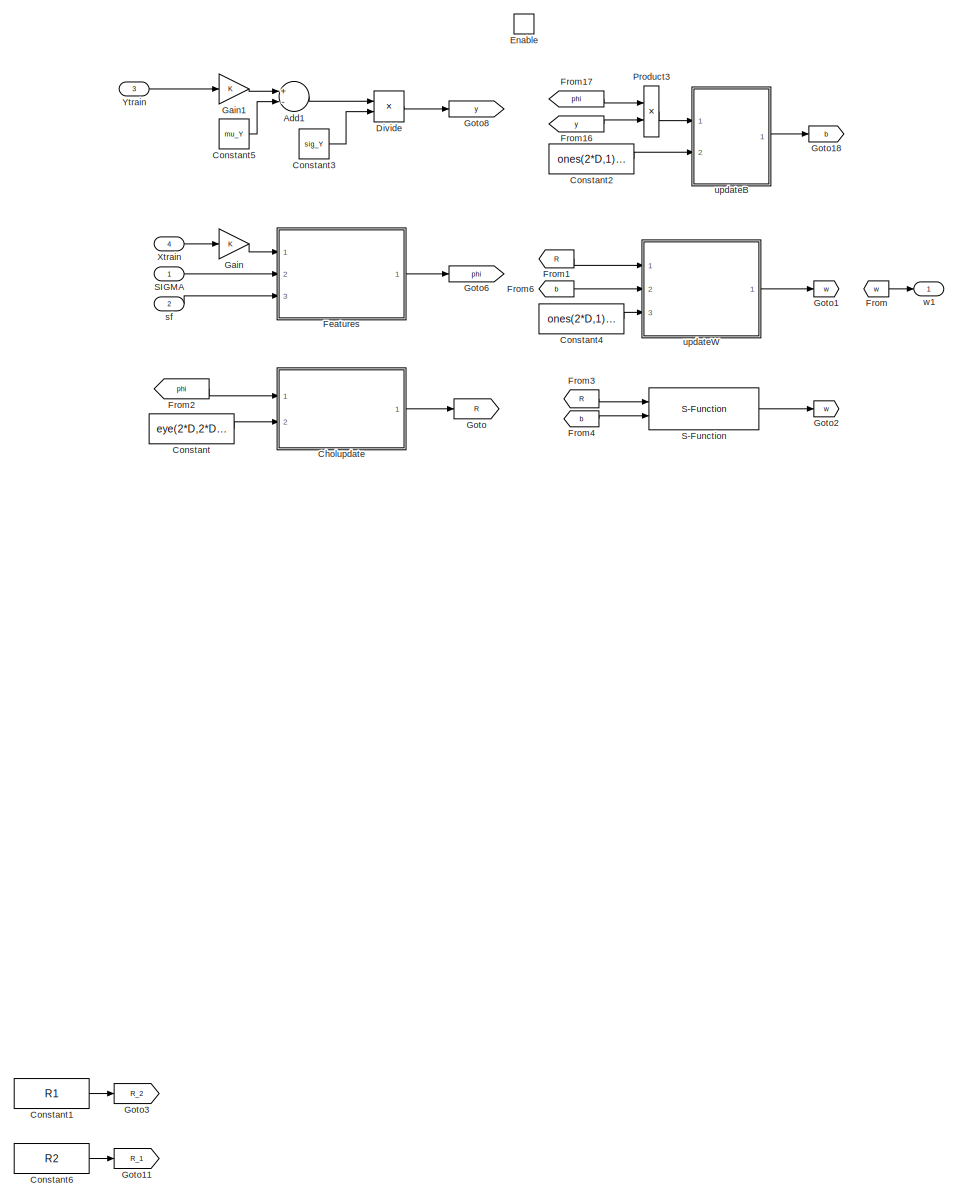
[diagram: Update Posterior - part 1/1, most of the canvas]
BLOCK [SubSystem] Update Posterior
  Ports = [4, 1, 1]
  RequestExecContextInheritance = off
BLOCK [Sum] Update Posterior/Add1
  InputSameDT = off
  Inputs = +-
  OutDataTypeStr = Inherit: Inherit via internal rule
  Ports = [2, 1]
  SaturateOnIntegerOverflow = off
BLOCK [SubSystem] Update Posterior/Cholupdate
  ErrorFcn = Stateflow.Translate.translate
  PermitHierarchicalResolution = ExplicitOnly
  Ports = [2, 1]
  RequestExecContextInheritance = off
  SFBlockType = MATLAB Function
  TreatAsAtomicUnit = on
BLOCK [Demux] Update Posterior/Cholupdate/ Demux 
  Outputs = 1
  Ports = [1, 1]
BLOCK [S-Function] Update Posterior/Cholupdate/ SFunction 
  EnableBusSupport = on
  FunctionName = sf_sfun
  Parameters = D,sn
  PortCounts = [2 2]
  Ports = [2, 2]
  SFcnIsStateOwnerBlock = off
  SFunctionDeploymentMode = off
  Tag = Stateflow S-Function TFlex_ISSGP_noHyp 6
BLOCK [Terminator] Update Posterior/Cholupdate/ Terminator 
BLOCK [Inport] Update Posterior/Cholupdate/R_init
  IconDisplay = Port number
  Port = 2
BLOCK [Outport] Update Posterior/Cholupdate/R_out
  IconDisplay = Port number
BLOCK [Inport] Update Posterior/Cholupdate/phi
  IconDisplay = Port number
BLOCK [Constant] Update Posterior/Constant
  SampleTime = ts
  Value = eye(2*D,2*D).*sn
BLOCK [Constant] Update Posterior/Constant1
  Commented = on
  SampleTime = -1
  Value = R1
  VectorParams1D = off
BLOCK [Constant] Update Posterior/Constant2
  SampleTime = ts
  Value = ones(2*D,1).*0.01
BLOCK [Constant] Update Posterior/Constant3
  SampleTime = ts
  Value = sig_Y
  VectorParams1D = off
BLOCK [Constant] Update Posterior/Constant4
  Commented = on
  SampleTime = ts
  Value = ones(2*D,1).*0.01
BLOCK [Constant] Update Posterior/Constant5
  SampleTime = ts
  Value = mu_Y
  VectorParams1D = off
BLOCK [Constant] Update Posterior/Constant6
  Commented = on
  SampleTime = -1
  Value = R2
  VectorParams1D = off
BLOCK [Product] Update Posterior/Divide
  InputSameDT = off
  Inputs = */
  OutDataTypeStr = Inherit: Inherit via internal rule
  Ports = [2, 1]
  RndMeth = Floor
  SaturateOnIntegerOverflow = off
BLOCK [EnablePort] Update Posterior/Enable
  Ports = []
BLOCK [SubSystem] Update Posterior/Features
  Ports = [3, 1]
  RequestExecContextInheritance = off
BLOCK [Constant] Update Posterior/Features/Constant
  SampleTime = ts
  Value = mu_X
  VectorParams1D = off
BLOCK [Constant] Update Posterior/Features/Constant1
  SampleTime = ts
  Value = sig_X
  VectorParams1D = off
BLOCK [Constant] Update Posterior/Features/Constant6
  SampleTime = -1
  Value = D
BLOCK [Product] Update Posterior/Features/Divide
  InputSameDT = off
  Inputs = */
  OutDataTypeStr = Inherit: Inherit via internal rule
  Ports = [2, 1]
  RndMeth = Floor
  SaturateOnIntegerOverflow = off
BLOCK [Product] Update Posterior/Features/Divide2
  InputSameDT = off
  Inputs = */
  OutDataTypeStr = Inherit: Inherit via internal rule
  Ports = [2, 1]
  RndMeth = Floor
  SaturateOnIntegerOverflow = off
BLOCK [Product] Update Posterior/Features/Product
  InputSameDT = off
  Multiplication = Matrix(*)
  OutDataTypeStr = Inherit: Inherit via internal rule
  Ports = [2, 1]
  RndMeth = Floor
  SaturateOnIntegerOverflow = off
BLOCK [Product] Update Posterior/Features/Product2
  InputSameDT = off
  OutDataTypeStr = Inherit: Inherit via internal rule
  Ports = [2, 1]
  RndMeth = Floor
  SaturateOnIntegerOverflow = off
BLOCK [Inport] Update Posterior/Features/SIGMA
  IconDisplay = Port number
  Port = 2
BLOCK [Sqrt] Update Posterior/Features/Sqrt
BLOCK [Sum] Update Posterior/Features/Sum
  IconShape = round
  InputSameDT = off
  Inputs = |+-
  OutDataTypeStr = Inherit: Inherit via internal rule
  Ports = [2, 1]
  SaturateOnIntegerOverflow = off
BLOCK [Math] Update Posterior/Features/Transpose
  Operator = transpose
  Ports = [1, 1]
BLOCK [Math] Update Posterior/Features/Transpose2
  Operator = transpose
  Ports = [1, 1]
BLOCK [Math] Update Posterior/Features/Transpose3
  Operator = transpose
  Ports = [1, 1]
BLOCK [Math] Update Posterior/Features/Transpose4
  Operator = transpose
  Ports = [1, 1]
BLOCK [Math] Update Posterior/Features/Transpose8
  Operator = transpose
  Ports = [1, 1]
BLOCK [Trigonometry] Update Posterior/Features/Trigonometric Function
  Operator = cos
  Ports = [1, 1]
BLOCK [Trigonometry] Update Posterior/Features/Trigonometric Function1
  Ports = [1, 1]
BLOCK [Concatenate] Update Posterior/Features/Vector Concatenate1
  Ports = [2, 1]
BLOCK [Outport] Update Posterior/Features/phi_out
  IconDisplay = Port number
BLOCK [Inport] Update Posterior/Features/sf
  IconDisplay = Port number
  Port = 3
BLOCK [Inport] Update Posterior/Features/x
  IconDisplay = Port number
BLOCK [From] Update Posterior/From
  GotoTag = w
BLOCK [From] Update Posterior/From1
  Commented = on
  GotoTag = R
BLOCK [From] Update Posterior/From16
  GotoTag = y
BLOCK [From] Update Posterior/From17
  GotoTag = phi
BLOCK [From] Update Posterior/From2
  GotoTag = phi
BLOCK [From] Update Posterior/From3
  GotoTag = R
BLOCK [From] Update Posterior/From4
  GotoTag = b
BLOCK [From] Update Posterior/From6
  Commented = on
  GotoTag = b
BLOCK [Gain] Update Posterior/Gain
  OutDataTypeStr = Inherit: Inherit via internal rule
  ParamDataTypeStr = Inherit: Inherit via internal rule
  SaturateOnIntegerOverflow = off
BLOCK [Gain] Update Posterior/Gain1
  OutDataTypeStr = Inherit: Inherit via internal rule
  ParamDataTypeStr = Inherit: Inherit via internal rule
  SaturateOnIntegerOverflow = off
BLOCK [Goto] Update Posterior/Goto
  GotoTag = R
BLOCK [Goto] Update Posterior/Goto1
  Commented = on
  GotoTag = w
BLOCK [Goto] Update Posterior/Goto11
  Commented = on
  GotoTag = R_1
BLOCK [Goto] Update Posterior/Goto18
  GotoTag = b
BLOCK [Goto] Update Posterior/Goto2
  GotoTag = w
BLOCK [Goto] Update Posterior/Goto3
  Commented = on
  GotoTag = R_2
BLOCK [Goto] Update Posterior/Goto6
  GotoTag = phi
BLOCK [Goto] Update Posterior/Goto8
  GotoTag = y
BLOCK [Product] Update Posterior/Product3
  InputSameDT = off
  OutDataTypeStr = Inherit: Inherit via internal rule
  Ports = [2, 1]
  RndMeth = Floor
  SaturateOnIntegerOverflow = off
BLOCK [S-Function] Update Posterior/S-Function
  EnableBusSupport = off
  FunctionName = solve_chol_sfun
  Parameters = 2*D
  Ports = [2, 1]
  SFcnIsStateOwnerBlock = off
  SFunctionDeploymentMode = off
BLOCK [Inport] Update Posterior/SIGMA
  IconDisplay = Port number
  SampleTime = ts
BLOCK [Inport] Update Posterior/Xtrain
  IconDisplay = Port number
  Port = 4
  PortDimensions = [n,1]
  SampleTime = ts
BLOCK [Inport] Update Posterior/Ytrain
  IconDisplay = Port number
  Port = 3
  PortDimensions = [1,1]
  SampleTime = ts
BLOCK [Inport] Update Posterior/sf
  IconDisplay = Port number
  Port = 2
  SampleTime = ts
BLOCK [SubSystem] Update Posterior/updateB
  ErrorFcn = Stateflow.Translate.translate
  PermitHierarchicalResolution = ExplicitOnly
  Ports = [2, 1]
  RequestExecContextInheritance = off
  SFBlockType = MATLAB Function
  TreatAsAtomicUnit = on
BLOCK [Demux] Update Posterior/updateB/ Demux 
  Outputs = 1
  Ports = [1, 1]
BLOCK [S-Function] Update Posterior/updateB/ SFunction 
  EnableBusSupport = on
  FunctionName = sf_sfun
  Parameters = D
  PortCounts = [2 2]
  Ports = [2, 2]
  SFcnIsStateOwnerBlock = off
  SFunctionDeploymentMode = off
  Tag = Stateflow S-Function TFlex_ISSGP_noHyp 8
BLOCK [Terminator] Update Posterior/updateB/ Terminator 
BLOCK [Inport] Update Posterior/updateB/b_init
  IconDisplay = Port number
  Port = 2
BLOCK [Outport] Update Posterior/updateB/b_out
  IconDisplay = Port number
BLOCK [Inport] Update Posterior/updateB/update
  IconDisplay = Port number
BLOCK [SubSystem] Update Posterior/updateW
  Commented = on
  ErrorFcn = Stateflow.Translate.translate
  PermitHierarchicalResolution = ExplicitOnly
  Ports = [3, 1]
  RequestExecContextInheritance = off
  SFBlockType = MATLAB Function
  TreatAsAtomicUnit = on
BLOCK [Demux] Update Posterior/updateW/ Demux 
  Outputs = 1
  Ports = [1, 1]
BLOCK [S-Function] Update Posterior/updateW/ SFunction 
  EnableBusSupport = on
  FunctionName = sf_sfun
  Parameters = D
  PortCounts = [3 2]
  Ports = [3, 2]
  SFcnIsStateOwnerBlock = off
  SFunctionDeploymentMode = off
  Tag = Stateflow S-Function TFlex_ISSGP_noHyp 4
BLOCK [Terminator] Update Posterior/updateW/ Terminator 
BLOCK [Inport] Update Posterior/updateW/R
  IconDisplay = Port number
BLOCK [Inport] Update Posterior/updateW/b
  IconDisplay = Port number
  Port = 2
BLOCK [Inport] Update Posterior/updateW/w_init
  IconDisplay = Port number
  Port = 3
BLOCK [Outport] Update Posterior/updateW/w_out
  IconDisplay = Port number
BLOCK [Outport] Update Posterior/w1
  IconDisplay = Port number
BLOCK [Scope] control Output
  Floating = off
  NumInputPorts = 4
  Ports = [4]
  ScopeSpecificationString = Simulink.scopes.TimeScopeBlockCfg('CurrentConfiguration', extmgr.ConfigurationSet(extmgr.Configuration('Core','General UI',true),extmgr.Configuration('Core','Source UI',true),extmgr.Configuration('Sources','WiredSimulink',true,'DataLoggingVariableName','ScopeData3'),extmgr.Configuration('Visuals','Time Domain',true,'SerializedDisplays',{struct('MinYLimReal','-419.16959','MaxYLimReal','563.0809','Y...<+3528ch>
BLOCK [Scope] plant output
  Floating = off
  NumInputPorts = 3
  Ports = [3]
  ScopeSpecificationString = Simulink.scopes.TimeScopeBlockCfg('CurrentConfiguration', extmgr.ConfigurationSet(extmgr.Configuration('Core','General UI',true),extmgr.Configuration('Core','Source UI',true),extmgr.Configuration('Sources','WiredSimulink',true,'DataLoggingVariableName','ScopeData5'),extmgr.Configuration('Visuals','Time Domain',true,'SerializedDisplays',{struct('MinYLimReal','-33.18472','MaxYLimReal','29.71189','YL...<+2806ch>
ANNOTATION (root): Level 2 Inference
ANNOTATION (root): Scopes & Logging
LINE Band-Limited White Noise1:1 -> Sum8:1
LINE Band-Limited White Noise:1 -> Multiply2:1
LINE Bus Selector1:1 -> Sum:1
LINE Bus Selector4:1 -> plant output:1
LINE Bus Selector4:2 -> plant output:2
LINE Bus Selector4:3 -> plant output:3
LINE Bus Selector5:1 -> Setpoint:1
LINE Bus Selector5:2 -> Setpoint:2
LINE Bus Selector5:3 -> Setpoint:3
LINE Bus Selector:1 -> Sum4:1
NET Cogging/Gain:1 -> Cogging/Cogging [mA]:1, Cogging/Goto:1, Cogging/Scope:1
LINE Cogging/Position:1 -> Cogging/Sine Wave Function:1
LINE Cogging/Sine Wave Function:1 -> Cogging/Sum of Elements:1
LINE Cogging/Sum of Elements:1 -> Cogging/Gain:1
LINE Cogging:1 -> Sum10:2
LINE Constant1:1 -> Goto2:1
LINE Constant4:1 -> Multiport Switch:1
LINE Constant6:1 -> Delay4:2
LINE Constant8:1 -> Multiport Switch:2
LINE Constant:1 -> Goto1:1
LINE Delay1:1 -> Sum10:1
LINE Delay3:1 -> Sum11:1
NET Delay5:1 -> Skewsine Setpoint Generator:1, TDfhan:1
LINE Delay:1 -> IC:1
LINE Estimated plant:1 -> Delay2:1
LINE From10:1 -> To Workspace8:1
LINE From11:1 -> RBD FF1:1
LINE From13:1 -> To Workspace2:1
LINE From14:1 -> To Workspace5:1
LINE From15:1 -> To Workspace6:1
LINE From16:1 -> To Workspace7:1
LINE From17:1 -> Bus Selector5:1
LINE From18:1 -> To Workspace9:1
LINE From19:1 -> To Workspace11:1
LINE From1:1 -> I-SSGP Predictions:2
LINE From20:1 -> Bus Selector4:1
LINE From21:1 -> To Workspace4:1
LINE From22:1 -> Gain2:1
LINE From24:1 -> Gain3:1
LINE From26:1 -> control Output:2
LINE From27:1 -> control Output:3
LINE From28:1 -> control Output:1
LINE From29:1 -> Delay4:1
LINE From2:1 -> Update Posterior:3
LINE From32:1 -> control Output:4
LINE From35:1 -> To Workspace10:1
LINE From37:1 -> State Variable filter1:1
LINE From3:1 -> Update Posterior:4
LINE From6:1 -> Update Posterior:1
LINE From7:1 -> Update Posterior:2
LINE From9:1 -> I-SSGP Predictions:3
LINE From:1 -> I-SSGP Predictions:1
LINE Gain2:1 -> To Workspace3:1
LINE Gain3:1 -> To Workspace1:1
LINE I-SSGP Predictions/Add:1 -> I-SSGP Predictions/Product1:2
LINE I-SSGP Predictions/Constant1:1 -> I-SSGP Predictions/Add:2
LINE I-SSGP Predictions/Constant:1 -> I-SSGP Predictions/Product:2
LINE I-SSGP Predictions/Dot Product:1 -> I-SSGP Predictions/Product:1
LINE I-SSGP Predictions/Product1:1 -> I-SSGP Predictions/FF_SSGP:1
LINE I-SSGP Predictions/Product:1 -> I-SSGP Predictions/Add:1
LINE I-SSGP Predictions/Ramp2:1 -> I-SSGP Predictions/Saturation:1
LINE I-SSGP Predictions/SIGMA:1 -> I-SSGP Predictions/Subsystem:2
NET I-SSGP Predictions/Saturation:1 -> I-SSGP Predictions/Product1:1, I-SSGP Predictions/Scope:1
LINE I-SSGP Predictions/Subsystem/Constant1:1 -> I-SSGP Predictions/Subsystem/Divide:2
LINE I-SSGP Predictions/Subsystem/Constant6:1 -> I-SSGP Predictions/Subsystem/Sqrt:1
LINE I-SSGP Predictions/Subsystem/Constant:1 -> I-SSGP Predictions/Subsystem/Sum:2
LINE I-SSGP Predictions/Subsystem/Divide2:1 -> I-SSGP Predictions/Subsystem/Product2:1
LINE I-SSGP Predictions/Subsystem/Divide:1 -> I-SSGP Predictions/Subsystem/Transpose1:1
LINE I-SSGP Predictions/Subsystem/Product2:1 -> I-SSGP Predictions/Subsystem/phi_1:1
NET I-SSGP Predictions/Subsystem/Product:1 -> I-SSGP Predictions/Subsystem/Trigonometric Function1:1, I-SSGP Predictions/Subsystem/Trigonometric Function:1
LINE I-SSGP Predictions/Subsystem/SIGMA:1 -> I-SSGP Predictions/Subsystem/Product:1
LINE I-SSGP Predictions/Subsystem/Sqrt:1 -> I-SSGP Predictions/Subsystem/Divide2:2
LINE I-SSGP Predictions/Subsystem/Sum:1 -> I-SSGP Predictions/Subsystem/Divide:1
LINE I-SSGP Predictions/Subsystem/Transpose1:1 -> I-SSGP Predictions/Subsystem/Product:2
LINE I-SSGP Predictions/Subsystem/Transpose2:1 -> I-SSGP Predictions/Subsystem/Vector Concatenate1:1
LINE I-SSGP Predictions/Subsystem/Transpose3:1 -> I-SSGP Predictions/Subsystem/Vector Concatenate1:2
LINE I-SSGP Predictions/Subsystem/Transpose4:1 -> I-SSGP Predictions/Subsystem/Product2:2
LINE I-SSGP Predictions/Subsystem/Transpose:1 -> I-SSGP Predictions/Subsystem/Sum:1
LINE I-SSGP Predictions/Subsystem/Trigonometric Function1:1 -> I-SSGP Predictions/Subsystem/Transpose3:1
LINE I-SSGP Predictions/Subsystem/Trigonometric Function:1 -> I-SSGP Predictions/Subsystem/Transpose2:1
LINE I-SSGP Predictions/Subsystem/Vector Concatenate1:1 -> I-SSGP Predictions/Subsystem/Transpose4:1
LINE I-SSGP Predictions/Subsystem/r:1 -> I-SSGP Predictions/Subsystem/Transpose:1
LINE I-SSGP Predictions/Subsystem/sf:1 -> I-SSGP Predictions/Subsystem/Divide2:1
LINE I-SSGP Predictions/Subsystem:1 -> I-SSGP Predictions/Dot Product:2
LINE I-SSGP Predictions/r:1 -> I-SSGP Predictions/Subsystem:1
LINE I-SSGP Predictions/sf:1 -> I-SSGP Predictions/Subsystem:3
LINE I-SSGP Predictions/w:1 -> I-SSGP Predictions/Dot Product:1
NET I-SSGP Predictions:1 -> Goto10:1, Sum1:2
LINE IC:1 -> Goto:1
NET Multiply2:1 -> Goto15:1, Sum7:2
LINE Multiport Switch:1 -> Delay5:1
NET Numerical derivative/Angle [deg]:1 -> Numerical derivative/Bus Creator:1, Numerical derivative/Discrete Derivative:1, Numerical derivative/Numerical State:1
LINE Numerical derivative/Bus Creator:1 -> Numerical derivative/State [deg]:1
NET Numerical derivative/Discrete Derivative1:1 -> Numerical derivative/Bus Creator:3, Numerical derivative/Numerical State:3
NET Numerical derivative/Discrete Derivative:1 -> Numerical derivative/Bus Creator:2, Numerical derivative/Discrete Derivative1:1, Numerical derivative/Numerical State:2
LINE PID/Discrete Derivative:1 -> PID/Gain3:1
LINE PID/Discrete-Time Integrator2:1 -> PID/Gain2:1
LINE PID/Gain1:1 -> PID/Sum2:2
LINE PID/Gain2:1 -> PID/Sum2:1
LINE PID/Gain3:1 -> PID/Sum2:3
LINE PID/Lowpass:1 -> PID/Discrete Derivative:1
LINE PID/Sum2:1 -> PID/Control output:1
NET PID/e:1 -> PID/Discrete-Time Integrator2:1, PID/Gain1:1, PID/Lowpass:1
NET PID:1 -> Estimated plant:1, Goto8:1, Sum11:2
LINE Position dependent noise:1 -> Multiply2:2
LINE Pulse Generator2:1 -> Sum3:1
NET Quantizer:1 -> Setpoint current [mA]:1, Sum7:1
LINE RBD FF/Demux:1 -> RBD FF/k_est:1
LINE RBD FF/Demux:2 -> RBD FF/d_est:1
LINE RBD FF/Demux:3 -> RBD FF/m_est:1
LINE RBD FF/Sum:1 -> RBD FF/rbd FF:1
LINE RBD FF/d_est:1 -> RBD FF/Sum:2
LINE RBD FF/k_est:1 -> RBD FF/Sum:1
LINE RBD FF/m_est:1 -> RBD FF/Sum:3
LINE RBD FF/r:1 -> RBD FF/Demux:1
LINE RBD FF1/Demux:1 -> RBD FF1/k_est:1
LINE RBD FF1/Demux:2 -> RBD FF1/d_est:1
LINE RBD FF1/Demux:3 -> RBD FF1/m_est:1
LINE RBD FF1/Sum:1 -> RBD FF1/rbd FF:1
LINE RBD FF1/d_est:1 -> RBD FF1/Sum:2
LINE RBD FF1/k_est:1 -> RBD FF1/Sum:1
LINE RBD FF1/m_est:1 -> RBD FF1/Sum:3
LINE RBD FF1/r:1 -> RBD FF1/Demux:1
LINE RBD FF1:1 -> Sum4:2
NET RBD FF:1 -> Goto11:1, Sum1:1
NET Rate Transition:1 -> Cogging:1, Position dependent noise:1, Sum8:2
LINE Saturation:1 -> Quantizer:1
LINE Skewsine Setpoint Generator/Bus Creator:1 -> Skewsine Setpoint Generator/ref:1
LINE Skewsine Setpoint Generator/Delay:1 -> Skewsine Setpoint Generator/Subsystem:1
LINE Skewsine Setpoint Generator/Setpoint:1 -> Skewsine Setpoint Generator/Delay:1
LINE Skewsine Setpoint Generator/Subsystem/Clock:1 -> Skewsine Setpoint Generator/Subsystem/Sum6:3
LINE Skewsine Setpoint Generator/Subsystem/Constant1:1 -> Skewsine Setpoint Generator/Subsystem/Sum6:1
LINE Skewsine Setpoint Generator/Subsystem/Constant2:1 -> Skewsine Setpoint Generator/Subsystem/MATLAB Function:2
LINE Skewsine Setpoint Generator/Subsystem/Constant:1 -> Skewsine Setpoint Generator/Subsystem/Sum5:2
LINE Skewsine Setpoint Generator/Subsystem/Delay4:1 -> Skewsine Setpoint Generator/Subsystem/Sum5:1
LINE Skewsine Setpoint Generator/Subsystem/Delay:1 -> Skewsine Setpoint Generator/Subsystem/Sum:1
LINE Skewsine Setpoint Generator/Subsystem/Gain:1 -> Skewsine Setpoint Generator/Subsystem/Sum6:2
LINE Skewsine Setpoint Generator/Subsystem/MATLAB Function:1 -> Skewsine Setpoint Generator/Subsystem/Sum2:2
LINE Skewsine Setpoint Generator/Subsystem/MATLAB Function:2 -> Skewsine Setpoint Generator/Subsystem/r_dot:1
LINE Skewsine Setpoint Generator/Subsystem/MATLAB Function:3 -> Skewsine Setpoint Generator/Subsystem/r_ddot:1
LINE Skewsine Setpoint Generator/Subsystem/Rate Transition:1 -> Skewsine Setpoint Generator/Subsystem/Sum2:1
NET Skewsine Setpoint Generator/Subsystem/Sum2:1 -> Skewsine Setpoint Generator/Subsystem/Scope:2, Skewsine Setpoint Generator/Subsystem/r:1
NET Skewsine Setpoint Generator/Subsystem/Sum5:1 -> Skewsine Setpoint Generator/Subsystem/Delay4:1, Skewsine Setpoint Generator/Subsystem/Gain:1
LINE Skewsine Setpoint Generator/Subsystem/Sum6:1 -> Skewsine Setpoint Generator/Subsystem/MATLAB Function:3
LINE Skewsine Setpoint Generator/Subsystem/Sum:1 -> Skewsine Setpoint Generator/Subsystem/MATLAB Function:1
NET Skewsine Setpoint Generator/Subsystem/setpoint:1 -> Skewsine Setpoint Generator/Subsystem/Delay:1, Skewsine Setpoint Generator/Subsystem/Rate Transition:1, Skewsine Setpoint Generator/Subsystem/Scope:1, Skewsine Setpoint Generator/Subsystem/Sum:2
LINE Skewsine Setpoint Generator/Subsystem:1 -> Skewsine Setpoint Generator/Bus Creator:1
LINE Skewsine Setpoint Generator/Subsystem:2 -> Skewsine Setpoint Generator/Bus Creator:2
LINE Skewsine Setpoint Generator/Subsystem:3 -> Skewsine Setpoint Generator/Bus Creator:3
LINE State Variable filter/Angle [deg]:1 -> State Variable filter/Sum:1
LINE State Variable filter/Bus Creator:1 -> State Variable filter/Filtered state [deg]:1
NET State Variable filter/Discrete-Time Integrator1:1 -> State Variable filter/Discrete-Time Integrator2:1, State Variable filter/Gain1:1, State Variable filter/Gain4:1
NET State Variable filter/Discrete-Time Integrator2:1 -> State Variable filter/Gain3:1, State Variable filter/Gain:1
NET State Variable filter/Discrete-Time Integrator:1 -> State Variable filter/Discrete-Time Integrator1:1, State Variable filter/Gain2:1, State Variable filter/Gain5:1
LINE State Variable filter/Gain1:1 -> State Variable filter/Sum5:2
NET State Variable filter/Gain2:1 -> State Variable filter/Bus Creator:3, State Variable filter/State SVF:3
NET State Variable filter/Gain3:1 -> State Variable filter/Bus Creator:1, State Variable filter/State SVF:1
NET State Variable filter/Gain4:1 -> State Variable filter/Bus Creator:2, State Variable filter/State SVF:2
LINE State Variable filter/Gain5:1 -> State Variable filter/Sum1:2
LINE State Variable filter/Gain:1 -> State Variable filter/Sum:2
LINE State Variable filter/Sum1:1 -> State Variable filter/Discrete-Time Integrator:1
LINE State Variable filter/Sum5:1 -> State Variable filter/Sum1:1
LINE State Variable filter/Sum:1 -> State Variable filter/Sum5:1
LINE State Variable filter1/Angle [deg]:1 -> State Variable filter1/Sum:1
LINE State Variable filter1/Bus Creator:1 -> State Variable filter1/Filtered state [deg]:1
NET State Variable filter1/Discrete-Time Integrator1:1 -> State Variable filter1/Discrete-Time Integrator2:1, State Variable filter1/Gain1:1, State Variable filter1/Gain4:1
NET State Variable filter1/Discrete-Time Integrator2:1 -> State Variable filter1/Gain3:1, State Variable filter1/Gain:1
NET State Variable filter1/Discrete-Time Integrator:1 -> State Variable filter1/Discrete-Time Integrator1:1, State Variable filter1/Gain2:1, State Variable filter1/Gain5:1
LINE State Variable filter1/Gain1:1 -> State Variable filter1/Sum5:2
NET State Variable filter1/Gain2:1 -> State Variable filter1/Bus Creator:3, State Variable filter1/State SVF:3
NET State Variable filter1/Gain3:1 -> State Variable filter1/Bus Creator:1, State Variable filter1/State SVF:1
NET State Variable filter1/Gain4:1 -> State Variable filter1/Bus Creator:2, State Variable filter1/State SVF:2
LINE State Variable filter1/Gain5:1 -> State Variable filter1/Sum1:2
LINE State Variable filter1/Gain:1 -> State Variable filter1/Sum:2
LINE State Variable filter1/Sum1:1 -> State Variable filter1/Discrete-Time Integrator:1
LINE State Variable filter1/Sum5:1 -> State Variable filter1/Sum1:1
LINE State Variable filter1/Sum:1 -> State Variable filter1/Sum5:1
LINE State Variable filter1:1 -> Bus Selector:1
LINE State Variable filter:1 -> Goto3:1
LINE Step1:1 -> Update Posterior:enable
LINE Step9:1 -> Sum3:2
LINE Step:1 -> I-SSGP Predictions:enable
LINE Sum10:1 -> TFlex:1
LINE Sum11:1 -> Saturation:1
LINE Sum17:1 -> Sum5:1
LINE Sum1:1 -> Delay3:1
LINE Sum3:1 -> Multiport Switch:4
LINE Sum4:1 -> Goto5:1
LINE Sum5:1 -> Sum:2
NET Sum7:1 -> Actual current [mA]:1, Delay1:1
NET Sum8:1 -> Goto16:1, Numerical derivative:1, State Variable filter:1, Sum17:2
NET Sum:1 -> Goto9:1, PID:1
LINE TDfhan/Bus Creator:1 -> TDfhan/ref:1
LINE TDfhan/Constant1:1 -> TDfhan/MATLAB Function2:4
LINE TDfhan/Constant:1 -> TDfhan/MATLAB Function2:3
NET TDfhan/Discrete-Time Integrator1:1 -> TDfhan/Bus Creator:1, TDfhan/Scope:1, TDfhan/Sum:1
NET TDfhan/Discrete-Time Integrator:1 -> TDfhan/Bus Creator:2, TDfhan/Discrete-Time Integrator1:1, TDfhan/MATLAB Function2:2, TDfhan/Scope:2
NET TDfhan/MATLAB Function2:1 -> TDfhan/Bus Creator:3, TDfhan/Discrete-Time Integrator:1, TDfhan/Scope:3
LINE TDfhan/P_init:1 -> TDfhan/Discrete-Time Integrator1:2
LINE TDfhan/Sum:1 -> TDfhan/MATLAB Function2:1
LINE TDfhan/V:1 -> TDfhan/Sum:2
NET TDfhan:1 -> Bus Selector1:1, Goto4:1, I-SSGP Predictions:4, RBD FF:1
LINE TFlex:1 -> Rate Transition:1
LINE Uniform Random Number1:1 -> Multiport Switch:3
LINE Update Posterior/Add1:1 -> Update Posterior/Divide:1
LINE Update Posterior/Cholupdate:1 -> Update Posterior/Goto:1
LINE Update Posterior/Constant1:1 -> Update Posterior/Goto3:1
LINE Update Posterior/Constant2:1 -> Update Posterior/updateB:2
LINE Update Posterior/Constant3:1 -> Update Posterior/Divide:2
LINE Update Posterior/Constant4:1 -> Update Posterior/updateW:3
LINE Update Posterior/Constant5:1 -> Update Posterior/Add1:2
LINE Update Posterior/Constant6:1 -> Update Posterior/Goto11:1
LINE Update Posterior/Constant:1 -> Update Posterior/Cholupdate:2
LINE Update Posterior/Divide:1 -> Update Posterior/Goto8:1
LINE Update Posterior/Features/Constant1:1 -> Update Posterior/Features/Divide:2
LINE Update Posterior/Features/Constant6:1 -> Update Posterior/Features/Sqrt:1
LINE Update Posterior/Features/Constant:1 -> Update Posterior/Features/Sum:2
LINE Update Posterior/Features/Divide2:1 -> Update Posterior/Features/Product2:1
LINE Update Posterior/Features/Divide:1 -> Update Posterior/Features/Transpose:1
LINE Update Posterior/Features/Product2:1 -> Update Posterior/Features/phi_out:1
NET Update Posterior/Features/Product:1 -> Update Posterior/Features/Trigonometric Function1:1, Update Posterior/Features/Trigonometric Function:1
LINE Update Posterior/Features/SIGMA:1 -> Update Posterior/Features/Product:1
LINE Update Posterior/Features/Sqrt:1 -> Update Posterior/Features/Divide2:2
LINE Update Posterior/Features/Sum:1 -> Update Posterior/Features/Divide:1
LINE Update Posterior/Features/Transpose2:1 -> Update Posterior/Features/Vector Concatenate1:1
LINE Update Posterior/Features/Transpose3:1 -> Update Posterior/Features/Vector Concatenate1:2
LINE Update Posterior/Features/Transpose4:1 -> Update Posterior/Features/Product2:2
LINE Update Posterior/Features/Transpose8:1 -> Update Posterior/Features/Sum:1
LINE Update Posterior/Features/Transpose:1 -> Update Posterior/Features/Product:2
LINE Update Posterior/Features/Trigonometric Function1:1 -> Update Posterior/Features/Transpose3:1
LINE Update Posterior/Features/Trigonometric Function:1 -> Update Posterior/Features/Transpose2:1
LINE Update Posterior/Features/Vector Concatenate1:1 -> Update Posterior/Features/Transpose4:1
LINE Update Posterior/Features/sf:1 -> Update Posterior/Features/Divide2:1
LINE Update Posterior/Features/x:1 -> Update Posterior/Features/Transpose8:1
LINE Update Posterior/Features:1 -> Update Posterior/Goto6:1
LINE Update Posterior/From16:1 -> Update Posterior/Product3:2
LINE Update Posterior/From17:1 -> Update Posterior/Product3:1
LINE Update Posterior/From1:1 -> Update Posterior/updateW:1
LINE Update Posterior/From2:1 -> Update Posterior/Cholupdate:1
LINE Update Posterior/From3:1 -> Update Posterior/S-Function:1
LINE Update Posterior/From4:1 -> Update Posterior/S-Function:2
LINE Update Posterior/From6:1 -> Update Posterior/updateW:2
LINE Update Posterior/From:1 -> Update Posterior/w1:1
LINE Update Posterior/Gain1:1 -> Update Posterior/Add1:1
LINE Update Posterior/Gain:1 -> Update Posterior/Features:1
LINE Update Posterior/Product3:1 -> Update Posterior/updateB:1
LINE Update Posterior/S-Function:1 -> Update Posterior/Goto2:1
LINE Update Posterior/SIGMA:1 -> Update Posterior/Features:2
LINE Update Posterior/Xtrain:1 -> Update Posterior/Gain:1
LINE Update Posterior/Ytrain:1 -> Update Posterior/Gain1:1
LINE Update Posterior/sf:1 -> Update Posterior/Features:3
LINE Update Posterior/updateB:1 -> Update Posterior/Goto18:1
LINE Update Posterior/updateW:1 -> Update Posterior/Goto1:1
LINE Update Posterior:1 -> Delay:1
note: NET lines group one-source signal fan-out (src -> all destinations, sorted); 1:1 wires keep LINE
CHART Skewsine Setpoint Generator/Subsystem/MATLAB Function states=1 transitions=1
  STATE_LABEL 'eML_blk_kernel()'
  STATE_LABEL 'SCRIPT:\nfunction [x,x_dot,x_ddot] = skewSine(hm,tm,t)\n\nif (t>=0) && (t<=tm)\n    x      = hm/tm*t - hm/(2*pi)*sin(2*pi/tm*t);\n    x_dot  = hm/tm - hm/tm*cos(2*pi/tm*t);\n    x_ddot = 2*pi*hm/(tm^2)*sin(2*pi/tm*t);\nelse\n    x      = hm;\n    x_dot  = 0;\n    x_ddot = 0;\nend\n\n'
CHART Update Posterior/updateW states=1 transitions=1
  STATE_LABEL 'eML_blk_kernel()'
  STATE_LABEL "SCRIPT:\nfunction w_out = updateW(R,b,w_init,D) \npersistent w\nif(isempty(w))\n    w = w_init;\nend\ncoder.extrinsic('solve_chol');\nw = solve_chol(R,b);\n%w = R\\(R'\\b);\nw_out = w;\n"
CHART Update Posterior/Cholupdate states=1 transitions=1
  STATE_LABEL 'eML_blk_kernel()'
  STATE_LABEL 'SCRIPT:\nfunction R_out = cholupdate_fcn(phi, R_init, D, sn)\npersistent R; \nif(isempty(R))\n    R = R_init;\nend\nR = cholupdate(R,phi);\nR_out = R;'
CHART TDfhan/MATLAB Function2 states=1 transitions=1
  STATE_LABEL 'eML_blk_kernel()'
  STATE_LABEL 'SCRIPT:\nfunction output = Fhan(v1,v2,r0, h0)\nd = h0^2*r0;\na0 = h0*v2;\ny = v1 + a0;\na1 = sqrt(d*(d+8*abs(y)));\na2 = a0 + sign(y)*(a1-d)/2;\nsy = (sign(y+d)-sign(y-d))/2;\na = (a0+y-a2)*sy +a2;\nsa = (sign(a+d)-sign(a-d))/2;\noutput = -r0 *(a/d -sign(a) )*sa - r0*sign(a);\n'
CHART Update Posterior/updateB states=1 transitions=1
  STATE_LABEL 'eML_blk_kernel()'
  STATE_LABEL 'SCRIPT:\nfunction b_out = updateB(update, b_init, D)\npersistent b \nif(isempty(b))\n    b = b_init;\nend\n\nb = b + update;\nb_out = b;\n'
